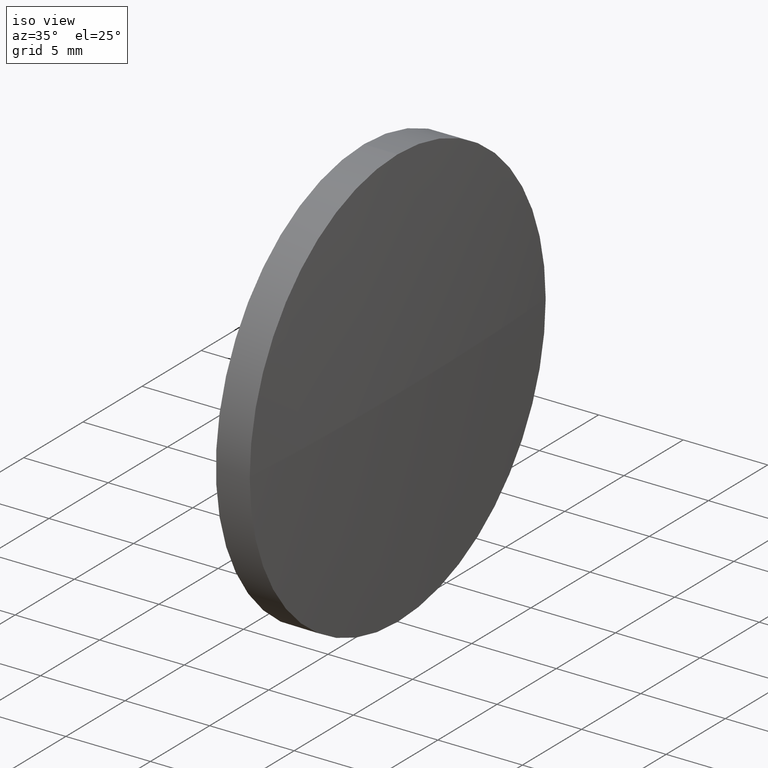
[diagram: clean part render]
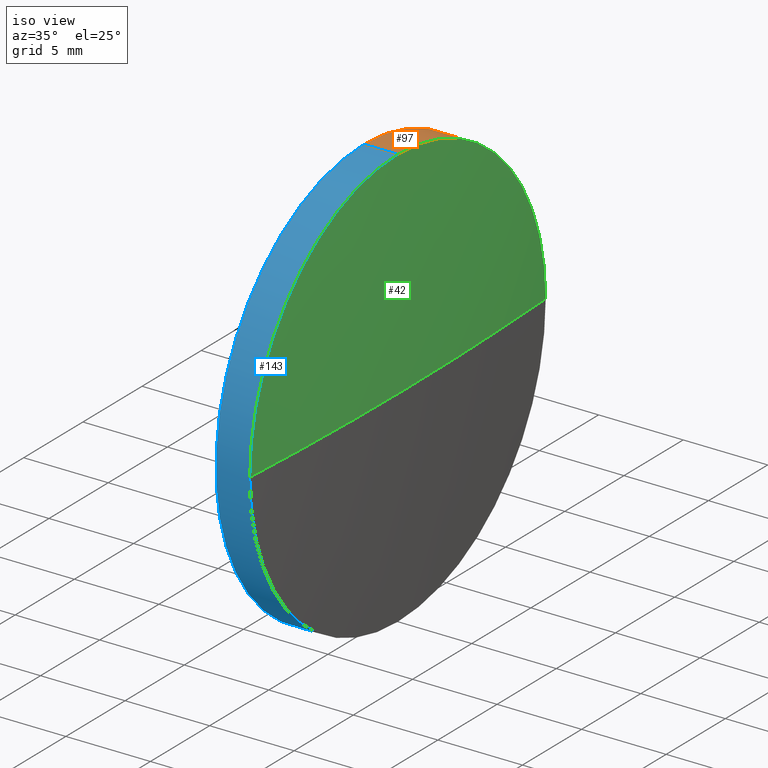
[diagram: same view with three faces highlighted in distinct colors, each labeled with its STEP entity id]
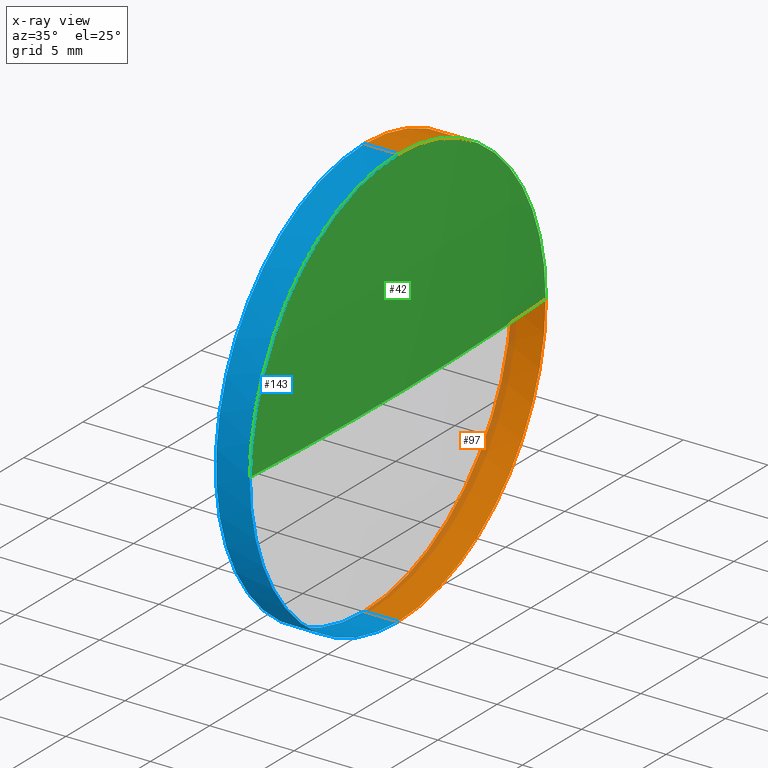
[diagram: x-ray of the same camera — body ghosted, the three highlighted faces saturated]
A machine part, iso view with three faces highlighted in distinct colors.
The next image is the same camera in x-ray (body ghosted, the three faces saturated) — at least one of them is partly hidden behind the body in this view.
Their STEP definitions:

[orange] entity #97 — the highlighted cylindrical surface (partial cylindrical patch) has radius 12.5 mm, axis along (-1, -0, -0).
#2 = AXIS2_PLACEMENT_3D ( 'NONE', #115, #129, #130 ) ;
#7 = DIRECTION ( 'NONE',  ( -1.000000000000000000, -0.0000000000000000000, -0.0000000000000000000 ) ) ;
#9 = CARTESIAN_POINT ( 'NONE',  ( 376.9290595469810800, 209.0413966464078600, 12.50000000000001100 ) ) ;
#11 = AXIS2_PLACEMENT_3D ( 'NONE', #159, #157, #43 ) ;
#14 = CARTESIAN_POINT ( 'NONE',  ( 379.2946754497420400, 209.0413966464078600, 0.0000000000000000000 ) ) ;
#20 = EDGE_CURVE ( 'NONE', #39, #29, #60, .T. ) ;
#25 = LINE ( 'NONE', #9, #170 ) ;
#26 = ORIENTED_EDGE ( 'NONE', *, *, #150, .T. ) ;
#29 = VERTEX_POINT ( 'NONE', #83 ) ;
#38 = EDGE_CURVE ( 'NONE', #68, #39, #162, .T. ) ;
#39 = VERTEX_POINT ( 'NONE', #49 ) ;
#43 = DIRECTION ( 'NONE',  ( 0.0000000000000000000, 0.0000000000000000000, 1.000000000000000000 ) ) ;
#45 = FACE_OUTER_BOUND ( 'NONE', #111, .T. ) ;
#46 = DIRECTION ( 'NONE',  ( -1.000000000000000000, -0.0000000000000000000, -0.0000000000000000000 ) ) ;
#49 = CARTESIAN_POINT ( 'NONE',  ( 381.2946754497420400, 221.5413966464080300, 0.0000000000000000000 ) ) ;
#57 = VECTOR ( 'NONE', #7, 1000.000000000000000 ) ;
#58 = AXIS2_PLACEMENT_3D ( 'NONE', #81, #178, #82 ) ;
#60 = CIRCLE ( 'NONE', #2, 12.50000000000001100 ) ;
#68 = VERTEX_POINT ( 'NONE', #71 ) ;
#71 = CARTESIAN_POINT ( 'NONE',  ( 381.2946754497420400, 209.0413966464078600, 12.50000000000001100 ) ) ;
#74 = ORIENTED_EDGE ( 'NONE', *, *, #177, .F. ) ;
#78 = EDGE_CURVE ( 'NONE', #109, #127, #101, .T. ) ;
#81 = CARTESIAN_POINT ( 'NONE',  ( 381.2946754497420400, 209.0413966464078600, 0.0000000000000000000 ) ) ;
#82 = DIRECTION ( 'NONE',  ( 0.0000000000000000000, 0.0000000000000000000, 1.000000000000000000 ) ) ;
#83 = CARTESIAN_POINT ( 'NONE',  ( 381.2946754497420400, 209.0413966464078600, -12.50000000000001100 ) ) ;
#97 = ADVANCED_FACE ( 'NONE', ( #45 ), #149, .T. ) ;
#101 = CIRCLE ( 'NONE', #186, 12.50000000000001100 ) ;
#106 = ORIENTED_EDGE ( 'NONE', *, *, #78, .F. ) ;
#109 = VERTEX_POINT ( 'NONE', #121 ) ;
#111 = EDGE_LOOP ( 'NONE', ( #173, #26, #106, #74, #132 ) ) ;
#115 = CARTESIAN_POINT ( 'NONE',  ( 381.2946754497420400, 209.0413966464078600, 0.0000000000000000000 ) ) ;
#121 = CARTESIAN_POINT ( 'NONE',  ( 379.2946754497420400, 209.0413966464078600, 12.50000000000001100 ) ) ;
#127 = VERTEX_POINT ( 'NONE', #163 ) ;
#129 = DIRECTION ( 'NONE',  ( -1.000000000000000000, -0.0000000000000000000, -0.0000000000000000000 ) ) ;
#130 = DIRECTION ( 'NONE',  ( 0.0000000000000000000, 0.0000000000000000000, 1.000000000000000000 ) ) ;
#132 = ORIENTED_EDGE ( 'NONE', *, *, #38, .T. ) ;
#146 = DIRECTION ( 'NONE',  ( 0.0000000000000000000, 0.0000000000000000000, 1.000000000000000000 ) ) ;
#148 = DIRECTION ( 'NONE',  ( -1.000000000000000000, -0.0000000000000000000, -0.0000000000000000000 ) ) ;
#149 = CYLINDRICAL_SURFACE ( 'NONE', #11, 12.50000000000001100 ) ;
#150 = EDGE_CURVE ( 'NONE', #29, #127, #165, .T. ) ;
#157 = DIRECTION ( 'NONE',  ( -1.000000000000000000, -0.0000000000000000000, -0.0000000000000000000 ) ) ;
#159 = CARTESIAN_POINT ( 'NONE',  ( 376.9290595469810800, 209.0413966464078600, 0.0000000000000000000 ) ) ;
#161 = CARTESIAN_POINT ( 'NONE',  ( 376.9290595469810800, 209.0413966464078600, -12.50000000000001100 ) ) ;
#162 = CIRCLE ( 'NONE', #58, 12.50000000000001100 ) ;
#163 = CARTESIAN_POINT ( 'NONE',  ( 379.2946754497420400, 209.0413966464078600, -12.50000000000001100 ) ) ;
#165 = LINE ( 'NONE', #161, #57 ) ;
#170 = VECTOR ( 'NONE', #148, 1000.000000000000000 ) ;
#173 = ORIENTED_EDGE ( 'NONE', *, *, #20, .T. ) ;
#177 = EDGE_CURVE ( 'NONE', #68, #109, #25, .T. ) ;
#178 = DIRECTION ( 'NONE',  ( -1.000000000000000000, -0.0000000000000000000, -0.0000000000000000000 ) ) ;
#186 = AXIS2_PLACEMENT_3D ( 'NONE', #14, #46, #146 ) ;

[blue] entity #143 — the highlighted cylindrical surface (partial cylindrical patch) has radius 12.5 mm, axis along (-1, -0, -0).
#5 = CARTESIAN_POINT ( 'NONE',  ( 381.2946754497420400, 196.5413966464076100, -1.530808498934213600E-015 ) ) ;
#7 = DIRECTION ( 'NONE',  ( -1.000000000000000000, -0.0000000000000000000, -0.0000000000000000000 ) ) ;
#8 = VERTEX_POINT ( 'NONE', #5 ) ;
#9 = CARTESIAN_POINT ( 'NONE',  ( 376.9290595469810800, 209.0413966464078600, 12.50000000000001100 ) ) ;
#10 = DIRECTION ( 'NONE',  ( 0.0000000000000000000, 0.0000000000000000000, 1.000000000000000000 ) ) ;
#13 = DIRECTION ( 'NONE',  ( -1.000000000000000000, -0.0000000000000000000, -0.0000000000000000000 ) ) ;
#19 = CARTESIAN_POINT ( 'NONE',  ( 381.2946754497420400, 209.0413966464078600, 0.0000000000000000000 ) ) ;
#22 = FACE_OUTER_BOUND ( 'NONE', #171, .T. ) ;
#23 = AXIS2_PLACEMENT_3D ( 'NONE', #31, #90, #139 ) ;
#25 = LINE ( 'NONE', #9, #170 ) ;
#28 = DIRECTION ( 'NONE',  ( 0.0000000000000000000, 0.0000000000000000000, 1.000000000000000000 ) ) ;
#29 = VERTEX_POINT ( 'NONE', #83 ) ;
#31 = CARTESIAN_POINT ( 'NONE',  ( 379.2946754497420400, 209.0413966464078600, 0.0000000000000000000 ) ) ;
#32 = ORIENTED_EDGE ( 'NONE', *, *, #167, .T. ) ;
#41 = CIRCLE ( 'NONE', #23, 12.50000000000001100 ) ;
#57 = VECTOR ( 'NONE', #7, 1000.000000000000000 ) ;
#59 = ORIENTED_EDGE ( 'NONE', *, *, #177, .T. ) ;
#62 = EDGE_CURVE ( 'NONE', #8, #68, #123, .T. ) ;
#65 = DIRECTION ( 'NONE',  ( 0.0000000000000000000, 0.0000000000000000000, 1.000000000000000000 ) ) ;
#68 = VERTEX_POINT ( 'NONE', #71 ) ;
#71 = CARTESIAN_POINT ( 'NONE',  ( 381.2946754497420400, 209.0413966464078600, 12.50000000000001100 ) ) ;
#75 = DIRECTION ( 'NONE',  ( -1.000000000000000000, -0.0000000000000000000, -0.0000000000000000000 ) ) ;
#83 = CARTESIAN_POINT ( 'NONE',  ( 381.2946754497420400, 209.0413966464078600, -12.50000000000001100 ) ) ;
#84 = CARTESIAN_POINT ( 'NONE',  ( 376.9290595469810800, 209.0413966464078600, 0.0000000000000000000 ) ) ;
#90 = DIRECTION ( 'NONE',  ( -1.000000000000000000, -0.0000000000000000000, -0.0000000000000000000 ) ) ;
#93 = ORIENTED_EDGE ( 'NONE', *, *, #62, .T. ) ;
#99 = CARTESIAN_POINT ( 'NONE',  ( 381.2946754497420400, 209.0413966464078600, 0.0000000000000000000 ) ) ;
#100 = CYLINDRICAL_SURFACE ( 'NONE', #174, 12.50000000000001100 ) ;
#109 = VERTEX_POINT ( 'NONE', #121 ) ;
#119 = EDGE_CURVE ( 'NONE', #127, #109, #41, .T. ) ;
#121 = CARTESIAN_POINT ( 'NONE',  ( 379.2946754497420400, 209.0413966464078600, 12.50000000000001100 ) ) ;
#123 = CIRCLE ( 'NONE', #172, 12.50000000000001100 ) ;
#127 = VERTEX_POINT ( 'NONE', #163 ) ;
#133 = DIRECTION ( 'NONE',  ( -1.000000000000000000, -0.0000000000000000000, -0.0000000000000000000 ) ) ;
#139 = DIRECTION ( 'NONE',  ( 0.0000000000000000000, 0.0000000000000000000, 1.000000000000000000 ) ) ;
#140 = ORIENTED_EDGE ( 'NONE', *, *, #119, .F. ) ;
#143 = ADVANCED_FACE ( 'NONE', ( #22 ), #100, .T. ) ;
#148 = DIRECTION ( 'NONE',  ( -1.000000000000000000, -0.0000000000000000000, -0.0000000000000000000 ) ) ;
#150 = EDGE_CURVE ( 'NONE', #29, #127, #165, .T. ) ;
#151 = ORIENTED_EDGE ( 'NONE', *, *, #150, .F. ) ;
#161 = CARTESIAN_POINT ( 'NONE',  ( 376.9290595469810800, 209.0413966464078600, -12.50000000000001100 ) ) ;
#163 = CARTESIAN_POINT ( 'NONE',  ( 379.2946754497420400, 209.0413966464078600, -12.50000000000001100 ) ) ;
#165 = LINE ( 'NONE', #161, #57 ) ;
#167 = EDGE_CURVE ( 'NONE', #29, #8, #182, .T. ) ;
#170 = VECTOR ( 'NONE', #148, 1000.000000000000000 ) ;
#171 = EDGE_LOOP ( 'NONE', ( #151, #32, #93, #59, #140 ) ) ;
#172 = AXIS2_PLACEMENT_3D ( 'NONE', #99, #13, #28 ) ;
#174 = AXIS2_PLACEMENT_3D ( 'NONE', #84, #75, #10 ) ;
#177 = EDGE_CURVE ( 'NONE', #68, #109, #25, .T. ) ;
#179 = AXIS2_PLACEMENT_3D ( 'NONE', #19, #133, #65 ) ;
#182 = CIRCLE ( 'NONE', #179, 12.50000000000001100 ) ;

[green] entity #42 — the highlighted spherical surface has radius 205.782 mm.
#1 = CIRCLE ( 'NONE', #85, 205.7821052631565800 ) ;
#5 = CARTESIAN_POINT ( 'NONE',  ( 381.2946754497420400, 196.5413966464076100, -1.530808498934213600E-015 ) ) ;
#6 = DIRECTION ( 'NONE',  ( -0.0000000000000000000, 0.0000000000000000000, -1.000000000000000000 ) ) ;
#8 = VERTEX_POINT ( 'NONE', #5 ) ;
#13 = DIRECTION ( 'NONE',  ( -1.000000000000000000, -0.0000000000000000000, -0.0000000000000000000 ) ) ;
#24 = ORIENTED_EDGE ( 'NONE', *, *, #38, .F. ) ;
#27 = CARTESIAN_POINT ( 'NONE',  ( 381.6746754497421000, 209.0413966464077800, 0.0000000000000000000 ) ) ;
#28 = DIRECTION ( 'NONE',  ( 0.0000000000000000000, 0.0000000000000000000, 1.000000000000000000 ) ) ;
#38 = EDGE_CURVE ( 'NONE', #68, #39, #162, .T. ) ;
#39 = VERTEX_POINT ( 'NONE', #49 ) ;
#42 = ADVANCED_FACE ( 'NONE', ( #67 ), #144, .T. ) ;
#49 = CARTESIAN_POINT ( 'NONE',  ( 381.2946754497420400, 221.5413966464080300, 0.0000000000000000000 ) ) ;
#50 = DIRECTION ( 'NONE',  ( -0.0000000000000000000, 0.0000000000000000000, 1.000000000000000000 ) ) ;
#52 = DIRECTION ( 'NONE',  ( 0.0000000000000000000, 1.224646799147353200E-016, -1.000000000000000000 ) ) ;
#54 = DIRECTION ( 'NONE',  ( 1.000000000000000000, 0.0000000000000000000, 0.0000000000000000000 ) ) ;
#58 = AXIS2_PLACEMENT_3D ( 'NONE', #81, #178, #82 ) ;
#61 = EDGE_LOOP ( 'NONE', ( #141, #95, #24, #136 ) ) ;
#62 = EDGE_CURVE ( 'NONE', #8, #68, #123, .T. ) ;
#67 = FACE_OUTER_BOUND ( 'NONE', #61, .T. ) ;
#68 = VERTEX_POINT ( 'NONE', #71 ) ;
#69 = AXIS2_PLACEMENT_3D ( 'NONE', #164, #52, #154 ) ;
#71 = CARTESIAN_POINT ( 'NONE',  ( 381.2946754497420400, 209.0413966464078600, 12.50000000000001100 ) ) ;
#80 = CARTESIAN_POINT ( 'NONE',  ( 175.8925701865855200, 209.0413966464077800, 0.0000000000000000000 ) ) ;
#81 = CARTESIAN_POINT ( 'NONE',  ( 381.2946754497420400, 209.0413966464078600, 0.0000000000000000000 ) ) ;
#82 = DIRECTION ( 'NONE',  ( 0.0000000000000000000, 0.0000000000000000000, 1.000000000000000000 ) ) ;
#85 = AXIS2_PLACEMENT_3D ( 'NONE', #152, #50, #54 ) ;
#88 = VERTEX_POINT ( 'NONE', #27 ) ;
#95 = ORIENTED_EDGE ( 'NONE', *, *, #126, .T. ) ;
#99 = CARTESIAN_POINT ( 'NONE',  ( 381.2946754497420400, 209.0413966464078600, 0.0000000000000000000 ) ) ;
#102 = AXIS2_PLACEMENT_3D ( 'NONE', #80, #6, #103 ) ;
#103 = DIRECTION ( 'NONE',  ( 0.0000000000000000000, 1.000000000000000000, 0.0000000000000000000 ) ) ;
#122 = EDGE_CURVE ( 'NONE', #88, #8, #155, .T. ) ;
#123 = CIRCLE ( 'NONE', #172, 12.50000000000001100 ) ;
#126 = EDGE_CURVE ( 'NONE', #88, #39, #1, .T. ) ;
#136 = ORIENTED_EDGE ( 'NONE', *, *, #62, .F. ) ;
#141 = ORIENTED_EDGE ( 'NONE', *, *, #122, .F. ) ;
#144 = SPHERICAL_SURFACE ( 'NONE', #102, 205.7821052631565500 ) ;
#152 = CARTESIAN_POINT ( 'NONE',  ( 175.8925701865855200, 209.0413966464077800, 0.0000000000000000000 ) ) ;
#154 = DIRECTION ( 'NONE',  ( 0.0000000000000000000, 1.000000000000000000, 1.224646799147353500E-016 ) ) ;
#155 = CIRCLE ( 'NONE', #69, 205.7821052631565200 ) ;
#162 = CIRCLE ( 'NONE', #58, 12.50000000000001100 ) ;
#164 = CARTESIAN_POINT ( 'NONE',  ( 175.8925701865855200, 209.0413966464077800, 0.0000000000000000000 ) ) ;
#172 = AXIS2_PLACEMENT_3D ( 'NONE', #99, #13, #28 ) ;
#178 = DIRECTION ( 'NONE',  ( -1.000000000000000000, -0.0000000000000000000, -0.0000000000000000000 ) ) ;